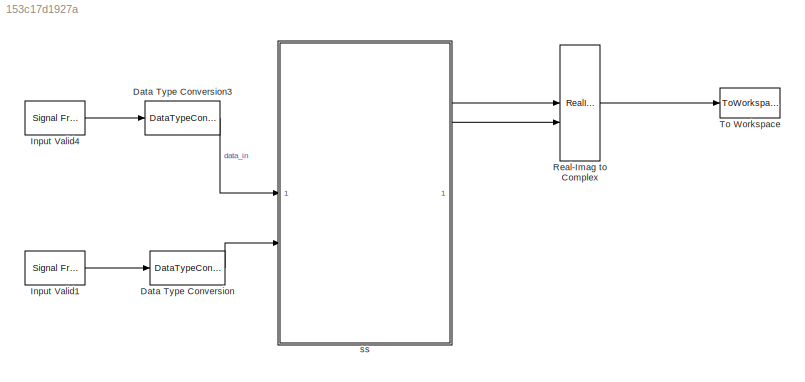
MODEL slx_153c17d1927a
KIND model
CONFIG AbsTol = auto
CONFIG EnableMultiTasking = off
CONFIG FixedStep = auto
CONFIG MaxStep = auto
CONFIG MinStep = auto
CONFIG RelTol = 1e-3
CONFIG SampleTimeConstraint = Unconstrained
CONFIG SolverName = FixedStepDiscrete
CONFIG StartTime = 0.0
CONFIG StopTime = stopTime
BLOCK [DataTypeConversion] Data Type Conversion
  OutDataTypeStr = boolean
  RndMeth = Floor
  SaturateOnIntegerOverflow = off
BLOCK [DataTypeConversion] Data Type Conversion3
  OutDataTypeStr = CONST.ipCoreDataType
  RndMeth = Floor
  SaturateOnIntegerOverflow = off
BLOCK [Reference] Input Valid1  REF=dspsrcs4/Signal From
Workspace
  SourceBlock = dspsrcs4/Signal From\nWorkspace
  SourceType = Signal From Workspace
BLOCK [Reference] Input Valid4  REF=dspsrcs4/Signal From
Workspace
  SourceBlock = dspsrcs4/Signal From\nWorkspace
  SourceType = Signal From Workspace
BLOCK [RealImagToComplex] Real-Imag to Complex
BLOCK [ToWorkspace] To Workspace
  MaxDataPoints = inf
  SampleTime = 1/CONST.fPHY
  Save2DSignal = 2-D array (concatenate along first dimension)
  VariableName = dataOut
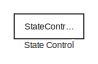
[diagram: ss - part 1/3, top center region]
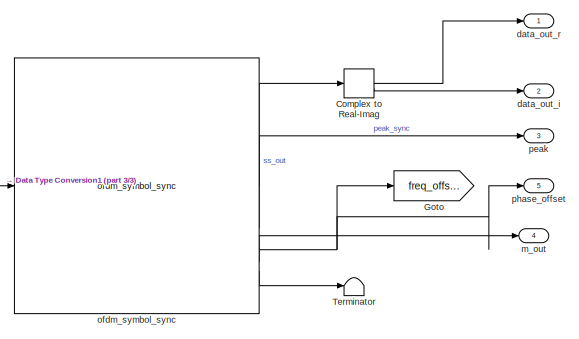
[diagram: ss - part 2/3, middle right region]
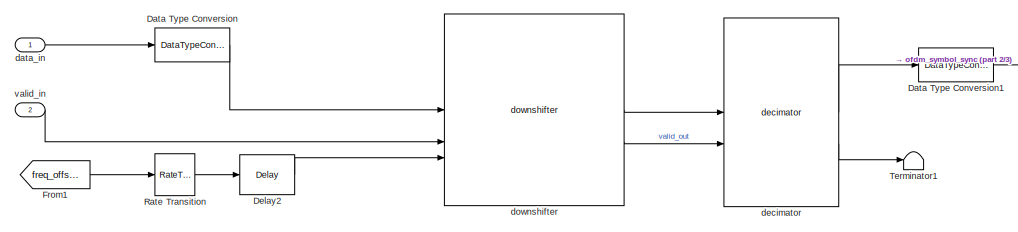
[diagram: ss - part 3/3, bottom left region]
BLOCK [SubSystem] ss
BLOCK [ComplexToRealImag] ss/Complex to Real-Imag
BLOCK [DataTypeConversion] ss/Data Type Conversion
  OutDataTypeStr = CONST.rxDemodInputDataType
  RndMeth = Floor
  SaturateOnIntegerOverflow = off
BLOCK [DataTypeConversion] ss/Data Type Conversion1
  OutDataTypeStr = CONST.rxDecimatorOutputDataType
  RndMeth = Floor
  SaturateOnIntegerOverflow = off
BLOCK [Delay] ss/Delay2
  DelayLength = 1
  InitialCondition = 0
  InputPortMap = u0
  UseCircularBuffer = on
  UserDataPersistent = on
BLOCK [From] ss/From1
  GotoTag = freq_offset
BLOCK [Goto] ss/Goto
  GotoTag = freq_offset
BLOCK [RateTransition] ss/Rate Transition
  OutPortSampleTime = 1/CONST.fDAC
BLOCK [StateControl] ss/State Control
  StateControl = Synchronous
BLOCK [Terminator] ss/Terminator
BLOCK [Terminator] ss/Terminator1
BLOCK [Inport] ss/data_in
BLOCK [Outport] ss/data_out_i
  Port = 2
  VectorParamsAs1DForOutWhenUnconnected = off
BLOCK [Outport] ss/data_out_r
  VectorParamsAs1DForOutWhenUnconnected = off
BLOCK [Reference] ss/decimator  REF=HDL_ieee_8021513/decimator
  SourceBlock = HDL_ieee_8021513/decimator
  SourceProductName = HDL IEEE 8021513
  SourceType = SubSystem
BLOCK [Reference] ss/downshifter  REF=HDL_ieee_8021513/downshifter
  SourceBlock = HDL_ieee_8021513/downshifter
  SourceProductName = HDL IEEE 8021513
  SourceType = SubSystem
BLOCK [Outport] ss/m_out
  Port = 4
  VectorParamsAs1DForOutWhenUnconnected = off
BLOCK [Reference] ss/ofdm_symbol_sync  REF=HDL_ieee_8021513/ofdm_symbol_sync
  SourceBlock = HDL_ieee_8021513/ofdm_symbol_sync
  SourceProductName = HDL IEEE 8021513
  SourceType = SubSystem
BLOCK [Outport] ss/peak
  Port = 3
  VectorParamsAs1DForOutWhenUnconnected = off
BLOCK [Outport] ss/phase_offset
  Port = 5
  VectorParamsAs1DForOutWhenUnconnected = off
BLOCK [Inport] ss/valid_in
  Port = 2
LINE Data Type Conversion3:1 -> ss:1
LINE Data Type Conversion:1 -> ss:2
LINE Input Valid1:1 -> Data Type Conversion:1
LINE Input Valid4:1 -> Data Type Conversion3:1
LINE Real-Imag to Complex:1 -> To Workspace:1
LINE ss/Complex to Real-Imag:1 -> ss/data_out_r:1
LINE ss/Complex to Real-Imag:2 -> ss/data_out_i:1
LINE ss/Data Type Conversion1:1 -> ss/ofdm_symbol_sync:1
LINE ss/Data Type Conversion:1 -> ss/downshifter:1
LINE ss/Delay2:1 -> ss/downshifter:3
LINE ss/From1:1 -> ss/Rate Transition:1
LINE ss/Rate Transition:1 -> ss/Delay2:1
LINE ss/data_in:1 -> ss/Data Type Conversion:1
LINE ss/decimator:1 -> ss/Data Type Conversion1:1
LINE ss/decimator:2 -> ss/Terminator1:1
LINE ss/downshifter:1 -> ss/decimator:1
LINE ss/downshifter:2 -> ss/decimator:2
LINE ss/ofdm_symbol_sync:1 -> ss/Complex to Real-Imag:1
LINE ss/ofdm_symbol_sync:2 -> ss/peak:1
NET ss/ofdm_symbol_sync:3 -> ss/Goto:1, ss/phase_offset:1
LINE ss/ofdm_symbol_sync:4 -> ss/m_out:1
LINE ss/ofdm_symbol_sync:5 -> ss/Terminator:1
LINE ss/valid_in:1 -> ss/downshifter:2
LINE ss:1 -> Real-Imag to Complex:1
LINE ss:2 -> Real-Imag to Complex:2
note: NET lines group one-source signal fan-out (src -> all destinations, sorted); 1:1 wires keep LINE
